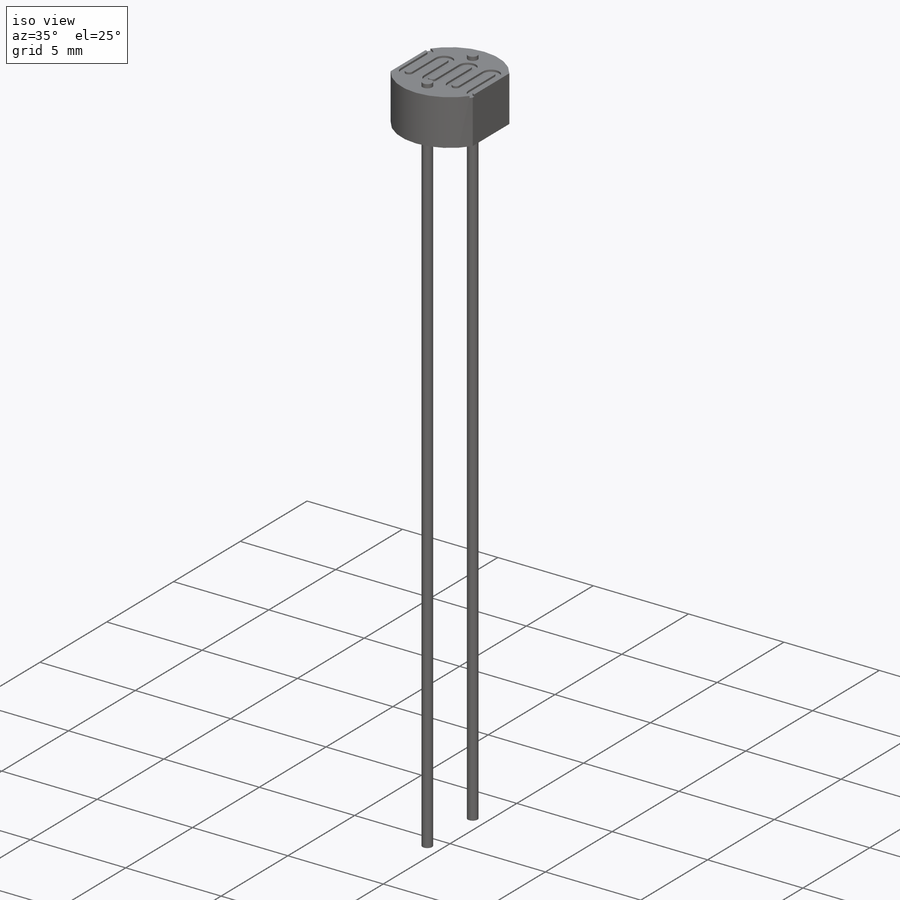
[diagram: iso view]
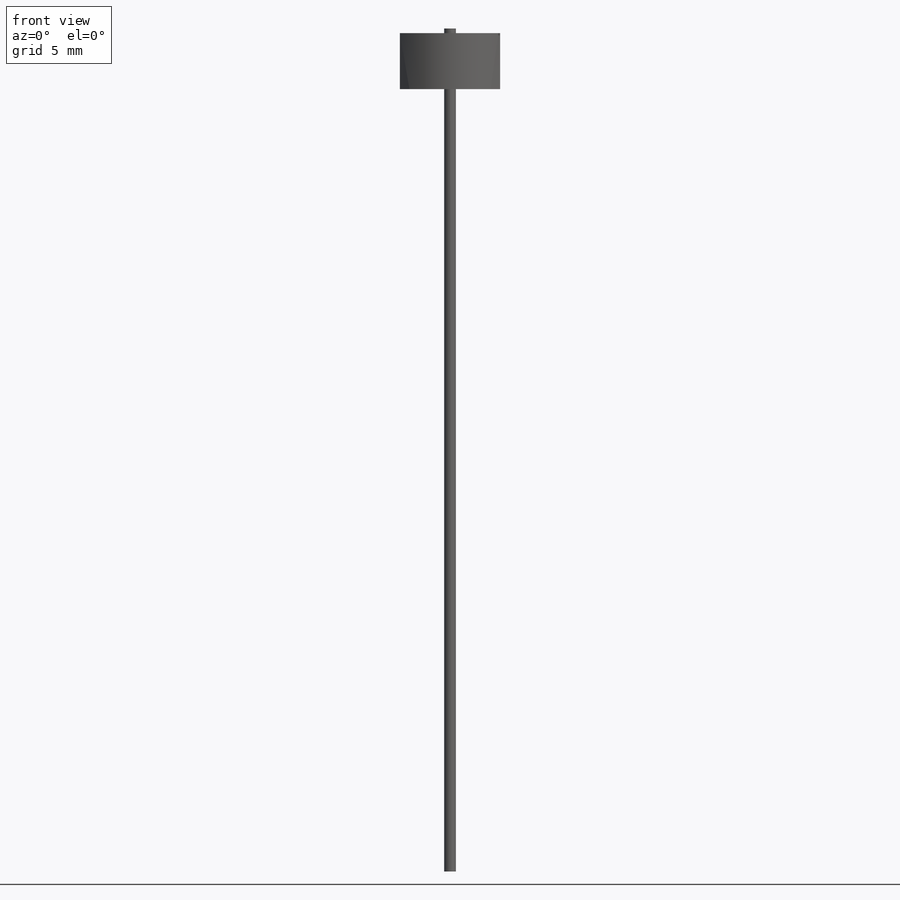
[diagram: front view]
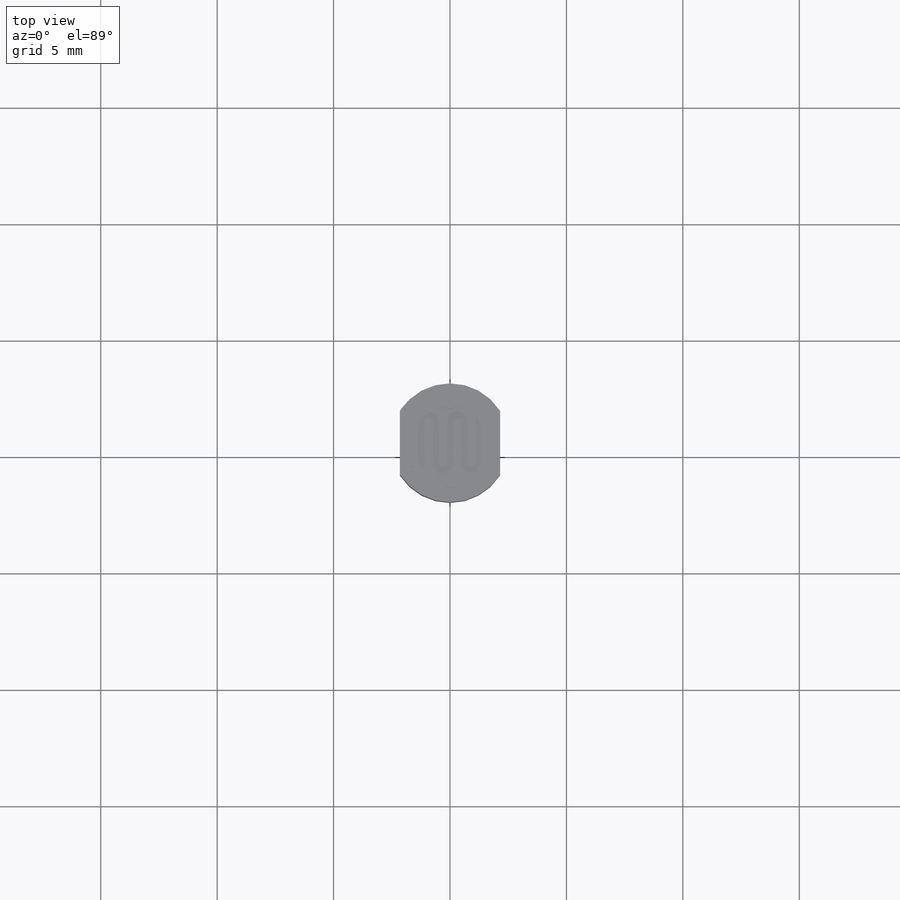
[diagram: top view]
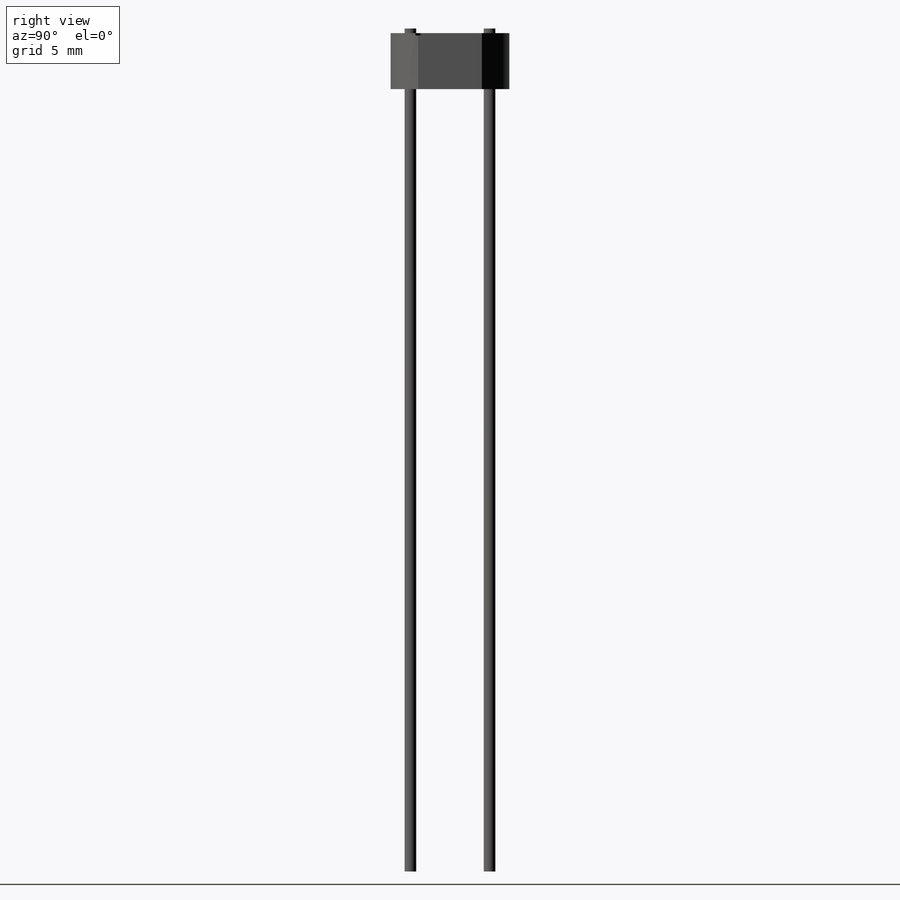
[diagram: right view]
SOLIDWORKS PART (.sldprt)
format: sldprt  version: not decoded by parser v0  size: 338,944 bytes
history: native  units: mm
features: sketch x3, extrude x2, material x1 (+12 scaffold rows collapsed)
feature tree (18):
  scaffold x12  (default folders/planes/origin — collapsed)
  material  "Material <not specified>"
  sketch  "Sketch1"  dims[D2=5.1mm D1=4.3mm]
  extrude  "Boss-Extrude1"  Depth=2.4mm
  sketch  "Sketch2"  dims[D1=0.5mm D2=3.4mm]
  extrude  "Boss-Extrude2"  Depth=36mm
  sketch  "Sketch3"  dims[c1.D1=1.75mm c2.D1=0.1mm c2.D5=0.25mm c2.D6=1.0mm c2.D7=5.0mm]
decode coverage: 5 of 5 modeling features carry decoded parameters
note: suppression state not decoded; provenance and decode notes live in map.json
